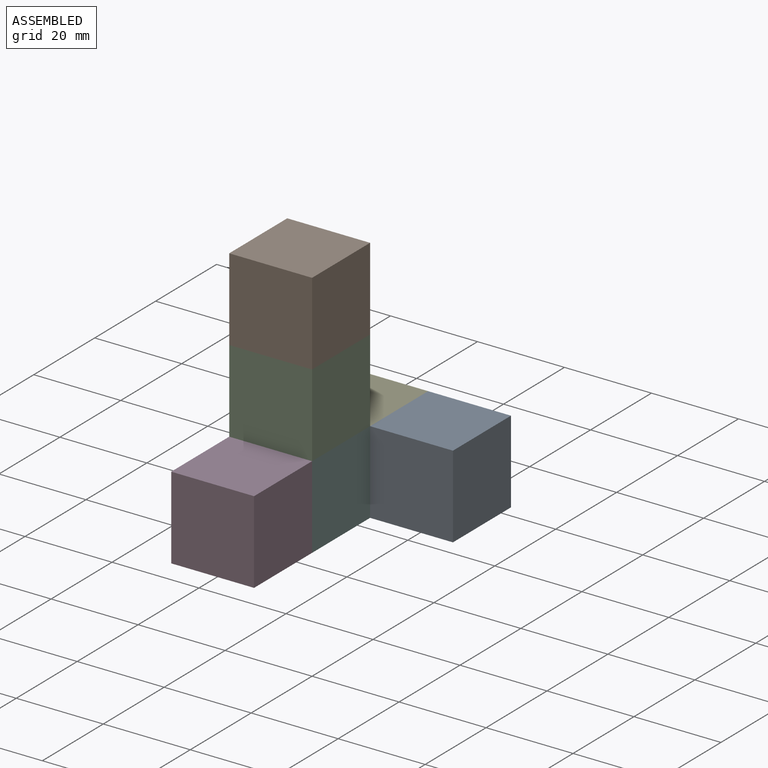
[diagram: assembled view]
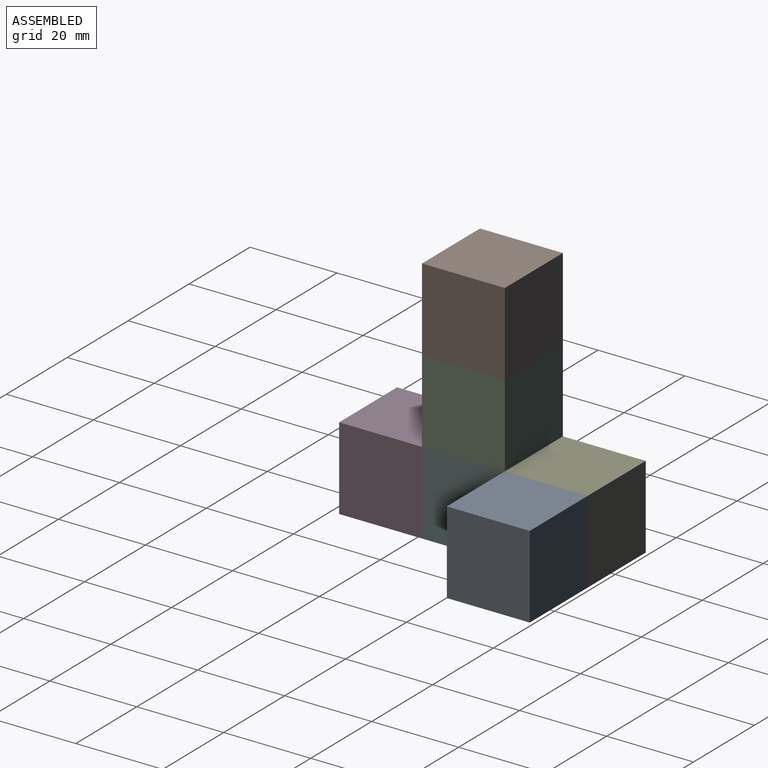
[diagram: assembled view, second angle]
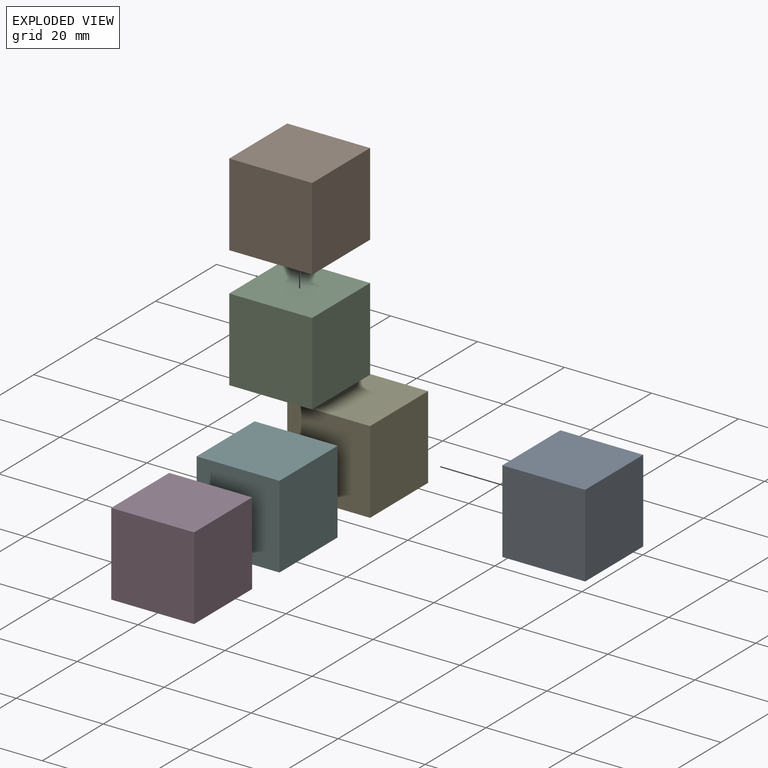
[diagram: exploded view]
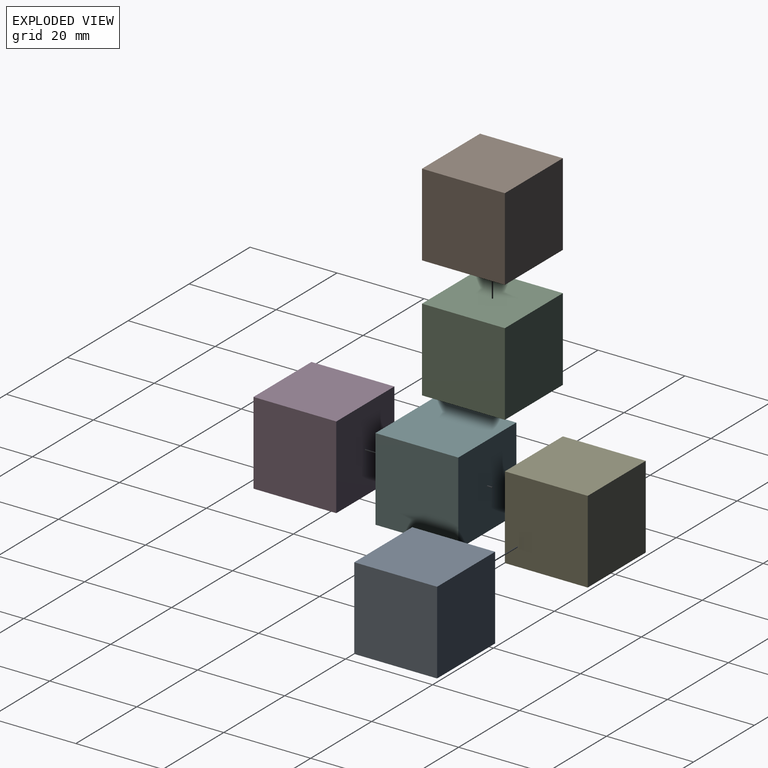
[diagram: exploded view, second angle]
ASSEMBLY  parts=6 mates=5
PART A: 6 faces, bbox 19.1x19.1x19.1 mm
  f0: plane 19.05x19.05mm, normal (-1,0,0), area 362.9mm2, adj f1,f3,f4,f5
  f1: plane 19.05x19.05mm, normal (0,0,-1), area 362.9mm2, adj f0,f2,f4,f5
  f2: plane 19.05x19.05mm, normal (1,0,0), area 362.9mm2, adj f1,f3,f4,f5
  f3: plane 19.05x19.05mm, normal (0,0,1), area 362.9mm2, adj f0,f2,f4,f5
  f4: plane 19.05x19.05mm, normal (0,-1,0), area 362.9mm2, adj f0,f1,f2,f3
  f5: plane 19.05x19.05mm, normal (0,1,0), area 362.9mm2, adj f0,f1,f2,f3
PART B: same geometry as A
PART C: same geometry as A
PART D: same geometry as A
PART E: same geometry as A
PART F: same geometry as A
PLACE A t=(-15.42,11.24,-6.18)mm
PLACE B t=(-34.47,-7.81,31.92)mm
PLACE C t=(-34.47,-7.81,12.87)mm
PLACE D t=(-34.47,-26.86,-6.18)mm
PLACE E t=(-34.47,11.24,-6.18)mm
PLACE F t=(-34.47,-7.81,-6.18)mm fixed
MATE fastened F.f3 <-> C.f1  axis (0,0,1) through (-39.39,-7.81,3.35)mm
MATE fastened F.f5 <-> E.f4  axis (0,1,0) through (-39.39,1.71,-6.18)mm
MATE fastened C.f3 <-> B.f1  axis (0,0,1) through (-39.39,-7.81,22.4)mm
MATE fastened E.f2 <-> A.f0  axis (1,0,0) through (-29.87,11.24,-6.18)mm
MATE fastened F.f4 <-> D.f5  axis (0,-1,0) through (-39.39,-17.34,-6.18)mm
